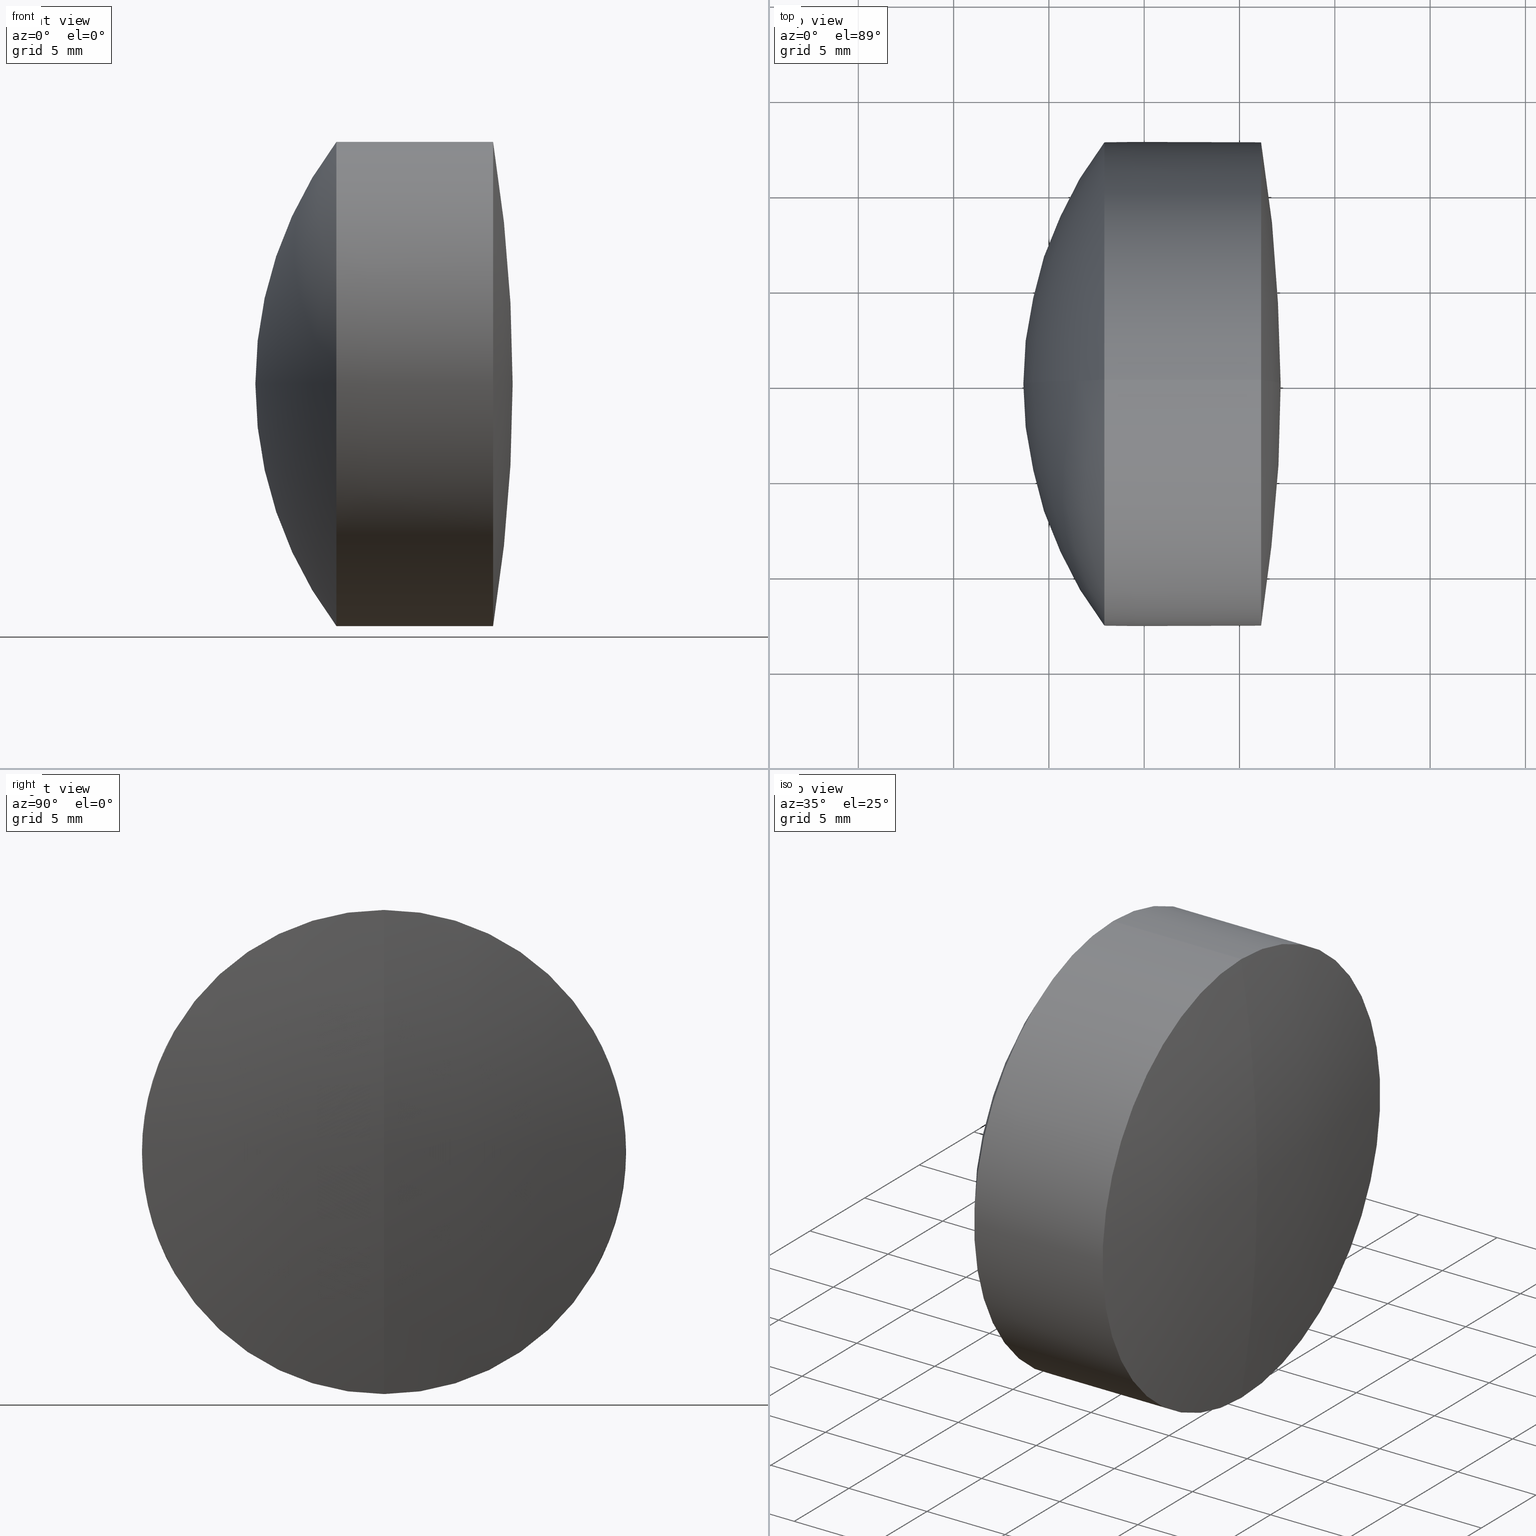
[diagram: canonical four-view strip — front | top / right | iso, engineering-drawing reading convention]
A machine part, canonical four-view strip (front | top / right | iso — engineering-drawing reading convention). The complete STEP part file that produces these views, byte-faithful:
ISO-10303-21;
HEADER;
FILE_DESCRIPTION (( 'STEP AP214' ),
    '1' );
FILE_NAME ('145114.STEP',
    '2019-05-31T01:51:42',
    ( 'user' ),
    ( '΢���й�' ),
    'SwSTEP 2.0',
    'SolidWorks 2016',
    '' );
FILE_SCHEMA (( 'AUTOMOTIVE_DESIGN' ));
ENDSEC;

DATA;
#1 = AXIS2_PLACEMENT_3D ( 'NONE', #118, #89, #330 ) ;
#2 = UNCERTAINTY_MEASURE_WITH_UNIT (LENGTH_MEASURE( 1.000000000000000100E-005 ), #229, 'distance_accuracy_value', 'NONE');
#3 = EDGE_CURVE ( 'NONE', #111, #268, #69, .T. ) ;
#4 = CIRCLE ( 'NONE', #109, 79.07999999999998400 ) ;
#5 = ORIENTED_EDGE ( 'NONE', *, *, #327, .F. ) ;
#6 = PRESENTATION_STYLE_ASSIGNMENT (( #246 ) ) ;
#7 = EDGE_CURVE ( 'NONE', #31, #111, #198, .T. ) ;
#8 = ORIENTED_EDGE ( 'NONE', *, *, #197, .F. ) ;
#9 = FACE_OUTER_BOUND ( 'NONE', #17, .T. ) ;
#10 = DIRECTION ( 'NONE',  ( 0.0000000000000000000, 1.000000000000000000, 0.0000000000000000000 ) ) ;
#11 = AXIS2_PLACEMENT_3D ( 'NONE', #121, #166, #13 ) ;
#12 = DIRECTION ( 'NONE',  ( -1.000000000000000000, -0.0000000000000000000, -0.0000000000000000000 ) ) ;
#13 = DIRECTION ( 'NONE',  ( 0.0000000000000000000, -1.224646799147353200E-016, 1.000000000000000000 ) ) ;
#14 = EDGE_CURVE ( 'NONE', #267, #157, #317, .T. ) ;
#15 = PRODUCT_DEFINITION_FORMATION_WITH_SPECIFIED_SOURCE ( '�κ�', '', #214, .NOT_KNOWN. ) ;
#16 = CIRCLE ( 'NONE', #125, 12.69999999999999800 ) ;
#17 = EDGE_LOOP ( 'NONE', ( #185, #97, #112, #153 ) ) ;
#18 = CYLINDRICAL_SURFACE ( 'NONE', #113, 12.70000000000000100 ) ;
#19 = AXIS2_PLACEMENT_3D ( 'NONE', #257, #260, #313 ) ;
#20 =( NAMED_UNIT ( * ) PLANE_ANGLE_UNIT ( ) SI_UNIT ( $, .RADIAN. ) );
#21 = FACE_OUTER_BOUND ( 'NONE', #194, .T. ) ;
#22 = CARTESIAN_POINT ( 'NONE',  ( 124.5233095260452400, 1.555301434917138600E-015, -12.70000000000000100 ) ) ;
#23 = ORIENTED_EDGE ( 'NONE', *, *, #310, .T. ) ;
#24 = CIRCLE ( 'NONE', #11, 16.18000000000000000 ) ;
#25 = CARTESIAN_POINT ( 'NONE',  ( 272.9115847359946700, 0.0000000000000000000, 0.0000000000000000000 ) ) ;
#26 = PRESENTATION_LAYER_ASSIGNMENT (  '', '', ( #129 ) ) ;
#27 = VERTEX_POINT ( 'NONE', #171 ) ;
#28 = CARTESIAN_POINT ( 'NONE',  ( 274.5040750828525800, 0.0000000000000000000, 0.0000000000000000000 ) ) ;
#29 = DIRECTION ( 'NONE',  ( 0.0000000000000000000, 1.000000000000000000, 0.0000000000000000000 ) ) ;
#30 = CARTESIAN_POINT ( 'NONE',  ( 281.1325348403413500, 1.555301434917137400E-015, -12.69999999999998500 ) ) ;
#31 = VERTEX_POINT ( 'NONE', #30 ) ;
#32 = VECTOR ( 'NONE', #145, 1000.000000000000000 ) ;
#33 = ADVANCED_FACE ( 'NONE', ( #284 ), #50, .T. ) ;
#34 = PRODUCT_RELATED_PRODUCT_CATEGORY ( 'part', '', ( #214 ) ) ;
#35 = MECHANICAL_DESIGN_GEOMETRIC_PRESENTATION_REPRESENTATION (  '', ( #129 ), #57 ) ;
#36 = DIRECTION ( 'NONE',  ( 0.0000000000000000000, 0.0000000000000000000, 1.000000000000000000 ) ) ;
#37 = EDGE_LOOP ( 'NONE', ( #62, #258, #213 ) ) ;
#38 = DIRECTION ( 'NONE',  ( 1.000000000000000000, 0.0000000000000000000, 0.0000000000000000000 ) ) ;
#39 = AXIS2_PLACEMENT_3D ( 'NONE', #28, #305, #148 ) ;
#40 = CARTESIAN_POINT ( 'NONE',  ( 272.9115847359946700, 0.0000000000000000000, 0.0000000000000000000 ) ) ;
#41 = SURFACE_SIDE_STYLE ('',( #115 ) ) ;
#42 = EDGE_LOOP ( 'NONE', ( #79, #74, #84 ) ) ;
#43 = CIRCLE ( 'NONE', #271, 12.69999999999998500 ) ;
#44 = EDGE_CURVE ( 'NONE', #157, #139, #82, .T. ) ;
#45 = CARTESIAN_POINT ( 'NONE',  ( -0.5519199926577972300, 0.0000000000000000000, 0.0000000000000000000 ) ) ;
#46 = DIRECTION ( 'NONE',  ( 0.0000000000000000000, 0.0000000000000000000, 1.000000000000000000 ) ) ;
#47 = CARTESIAN_POINT ( 'NONE',  ( 280.6589865545651000, 0.0000000000000000000, 7.929633164417436900E-015 ) ) ;
#48 = CARTESIAN_POINT ( 'NONE',  ( -0.5519199926577972300, 1.555301434917137800E-015, -12.69999999999999200 ) ) ;
#49 = APPLICATION_PROTOCOL_DEFINITION ( 'draft international standard', 'automotive_design', 1998, #256 ) ;
#50 = SPHERICAL_SURFACE ( 'NONE', #263, 21.08999999999999600 ) ;
#51 = CARTESIAN_POINT ( 'NONE',  ( 289.7489865545650800, 0.0000000000000000000, 6.938893904096653600E-015 ) ) ;
#52 = DIRECTION ( 'NONE',  ( 0.0000000000000000000, 0.0000000000000000000, 1.000000000000000000 ) ) ;
#53 = AXIS2_PLACEMENT_3D ( 'NONE', #243, #151, #341 ) ;
#54 = ADVANCED_FACE ( 'NONE', ( #75 ), #216, .F. ) ;
#55 = ORIENTED_EDGE ( 'NONE', *, *, #70, .F. ) ;
#56 = LINE ( 'NONE', #22, #253 ) ;
#57 =( GEOMETRIC_REPRESENTATION_CONTEXT ( 3 ) GLOBAL_UNCERTAINTY_ASSIGNED_CONTEXT ( ( #273 ) ) GLOBAL_UNIT_ASSIGNED_CONTEXT ( ( #230, #204, #249 ) ) REPRESENTATION_CONTEXT ( 'NONE', 'WORKASPACE' ) );
#58 = EDGE_CURVE ( 'NONE', #189, #318, #56, .T. ) ;
#59 = CARTESIAN_POINT ( 'NONE',  ( 264.4789865545651500, 0.0000000000000000000, 6.938893903907228400E-015 ) ) ;
#60 =( NAMED_UNIT ( * ) PLANE_ANGLE_UNIT ( ) SI_UNIT ( $, .RADIAN. ) );
#61 = CIRCLE ( 'NONE', #307, 16.18000000000000000 ) ;
#62 = ORIENTED_EDGE ( 'NONE', *, *, #147, .F. ) ;
#63 = ORIENTED_EDGE ( 'NONE', *, *, #188, .F. ) ;
#64 = PRESENTATION_STYLE_ASSIGNMENT (( #71 ) ) ;
#65 = CARTESIAN_POINT ( 'NONE',  ( 280.6589865545651000, 0.0000000000000000000, 7.929633164417436900E-015 ) ) ;
#66 = DIRECTION ( 'NONE',  ( 0.0000000000000000000, 0.0000000000000000000, 1.000000000000000000 ) ) ;
#67 = APPLICATION_CONTEXT ( 'automotive_design' ) ;
#68 = ORIENTED_EDGE ( 'NONE', *, *, #191, .F. ) ;
#69 = CIRCLE ( 'NONE', #218, 12.69999999999999800 ) ;
#70 = EDGE_CURVE ( 'NONE', #157, #189, #85, .T. ) ;
#71 = SURFACE_STYLE_USAGE ( .BOTH. , #123 ) ;
#72 = CARTESIAN_POINT ( 'NONE',  ( 274.5040750828525800, 0.0000000000000000000, 12.69999999999999600 ) ) ;
#73 = ORIENTED_EDGE ( 'NONE', *, *, #163, .F. ) ;
#74 = ORIENTED_EDGE ( 'NONE', *, *, #14, .T. ) ;
#75 = FACE_OUTER_BOUND ( 'NONE', #334, .T. ) ;
#76 = AXIS2_PLACEMENT_3D ( 'NONE', #138, #241, #297 ) ;
#77 = DIRECTION ( 'NONE',  ( 0.0000000000000000000, 0.0000000000000000000, 1.000000000000000000 ) ) ;
#78 = SPHERICAL_SURFACE ( 'NONE', #176, 79.07999999999998400 ) ;
#79 = ORIENTED_EDGE ( 'NONE', *, *, #169, .F. ) ;
#80 = COLOUR_RGB ( '',1.000000000000000000, 1.000000000000000000, 1.000000000000000000 ) ;
#81 = ADVANCED_FACE ( 'NONE', ( #296 ), #18, .T. ) ;
#82 = LINE ( 'NONE', #179, #322 ) ;
#83 = ORIENTED_EDGE ( 'NONE', *, *, #169, .T. ) ;
#84 = ORIENTED_EDGE ( 'NONE', *, *, #294, .F. ) ;
#85 = CIRCLE ( 'NONE', #39, 12.69999999999999600 ) ;
#86 = ORIENTED_EDGE ( 'NONE', *, *, #187, .F. ) ;
#87 = DIRECTION ( 'NONE',  ( 0.0000000000000000000, 0.0000000000000000000, 1.000000000000000000 ) ) ;
#88 = AXIS2_PLACEMENT_3D ( 'NONE', #127, #233, #196 ) ;
#89 = DIRECTION ( 'NONE',  ( -1.000000000000000000, -0.0000000000000000000, -0.0000000000000000000 ) ) ;
#90 = ORIENTED_EDGE ( 'NONE', *, *, #44, .T. ) ;
#91 = CARTESIAN_POINT ( 'NONE',  ( 289.7489865545650800, 0.0000000000000000000, 6.938893904096653600E-015 ) ) ;
#92 =( NAMED_UNIT ( * ) PLANE_ANGLE_UNIT ( ) SI_UNIT ( $, .RADIAN. ) );
#93 = CARTESIAN_POINT ( 'NONE',  ( 264.4789865545651500, 0.0000000000000000000, 6.938893903907228400E-015 ) ) ;
#94 = CARTESIAN_POINT ( 'NONE',  ( 274.5040750828525800, 0.0000000000000000000, 12.69999999999999800 ) ) ;
#95 = DIRECTION ( 'NONE',  ( 0.0000000000000000000, -1.000000000000000000, -1.224646799147353200E-016 ) ) ;
#96 = DIRECTION ( 'NONE',  ( 0.0000000000000000000, 0.0000000000000000000, 1.000000000000000000 ) ) ;
#97 = ORIENTED_EDGE ( 'NONE', *, *, #197, .T. ) ;
#98 =( GEOMETRIC_REPRESENTATION_CONTEXT ( 3 ) GLOBAL_UNCERTAINTY_ASSIGNED_CONTEXT ( ( #2 ) ) GLOBAL_UNIT_ASSIGNED_CONTEXT ( ( #229, #20, #195 ) ) REPRESENTATION_CONTEXT ( 'NONE', 'WORKASPACE' ) );
#99 = DIRECTION ( 'NONE',  ( 0.0000000000000000000, 0.0000000000000000000, -1.000000000000000000 ) ) ;
#100 = DIRECTION ( 'NONE',  ( -1.000000000000000000, -0.0000000000000000000, -0.0000000000000000000 ) ) ;
#101 = DIRECTION ( 'NONE',  ( 0.0000000000000000000, 0.0000000000000000000, 1.000000000000000000 ) ) ;
#102 = DIRECTION ( 'NONE',  ( -1.000000000000000000, -0.0000000000000000000, -0.0000000000000000000 ) ) ;
#103 = DIRECTION ( 'NONE',  ( 0.0000000000000000000, 0.0000000000000000000, -1.000000000000000000 ) ) ;
#104 = AXIS2_PLACEMENT_3D ( 'NONE', #234, #287, #77 ) ;
#105 = DIRECTION ( 'NONE',  ( -1.000000000000000000, -0.0000000000000000000, -0.0000000000000000000 ) ) ;
#106 = CIRCLE ( 'NONE', #238, 21.08999999999999600 ) ;
#107 = ADVANCED_FACE ( 'NONE', ( #135 ), #131, .T. ) ;
#108 = EDGE_CURVE ( 'NONE', #27, #31, #110, .T. ) ;
#109 = AXIS2_PLACEMENT_3D ( 'NONE', #164, #219, #323 ) ;
#110 = CIRCLE ( 'NONE', #184, 12.69999999999998500 ) ;
#111 = VERTEX_POINT ( 'NONE', #304 ) ;
#112 = ORIENTED_EDGE ( 'NONE', *, *, #187, .T. ) ;
#113 = AXIS2_PLACEMENT_3D ( 'NONE', #167, #178, #52 ) ;
#114 = CARTESIAN_POINT ( 'NONE',  ( 282.1589865545651000, 0.0000000000000000000, 4.842253443828633400E-015 ) ) ;
#115 = SURFACE_STYLE_FILL_AREA ( #227 ) ;
#116 = DIRECTION ( 'NONE',  ( 0.0000000000000000000, 0.0000000000000000000, 1.000000000000000000 ) ) ;
#117 = ADVANCED_BREP_SHAPE_REPRESENTATION ( '145114', ( #221, #282, #320 ), #160 ) ;
#118 = CARTESIAN_POINT ( 'NONE',  ( -0.5519199926577972300, 0.0000000000000000000, 0.0000000000000000000 ) ) ;
#119 = COLOUR_RGB ( '',1.000000000000000000, 1.000000000000000000, 1.000000000000000000 ) ;
#120 = AXIS2_PLACEMENT_3D ( 'NONE', #25, #100, #116 ) ;
#121 = CARTESIAN_POINT ( 'NONE',  ( 264.4789865545651500, 0.0000000000000000000, 6.938893903907228400E-015 ) ) ;
#122 = FACE_OUTER_BOUND ( 'NONE', #42, .T. ) ;
#123 = SURFACE_SIDE_STYLE ('',( #134 ) ) ;
#124 = ORIENTED_EDGE ( 'NONE', *, *, #294, .T. ) ;
#125 = AXIS2_PLACEMENT_3D ( 'NONE', #190, #12, #36 ) ;
#126 = CARTESIAN_POINT ( 'NONE',  ( -0.5519199926577972300, 0.0000000000000000000, 12.69999999999999200 ) ) ;
#127 = CARTESIAN_POINT ( 'NONE',  ( 264.4789865545651500, 0.0000000000000000000, 6.938893903907228400E-015 ) ) ;
#128 = DIRECTION ( 'NONE',  ( 0.0000000000000000000, -1.224646799147353200E-016, 1.000000000000000000 ) ) ;
#129 = STYLED_ITEM ( 'NONE', ( #64 ), #282 ) ;
#130 = ADVANCED_FACE ( 'NONE', ( #9 ), #278, .T. ) ;
#131 = SPHERICAL_SURFACE ( 'NONE', #150, 79.07999999999998400 ) ;
#132 = EDGE_LOOP ( 'NONE', ( #231, #301, #5, #86 ) ) ;
#133 = ORIENTED_EDGE ( 'NONE', *, *, #44, .F. ) ;
#134 = SURFACE_STYLE_FILL_AREA ( #309 ) ;
#135 = FACE_OUTER_BOUND ( 'NONE', #224, .T. ) ;
#136 = EDGE_LOOP ( 'NONE', ( #201, #259, #347, #133 ) ) ;
#137 = PRESENTATION_LAYER_ASSIGNMENT (  '', '', ( #222 ) ) ;
#138 = CARTESIAN_POINT ( 'NONE',  ( 274.5040750828525800, 0.0000000000000000000, 0.0000000000000000000 ) ) ;
#139 = VERTEX_POINT ( 'NONE', #250 ) ;
#140 = AXIS2_PLACEMENT_3D ( 'NONE', #59, #10, #87 ) ;
#141 = SURFACE_STYLE_FILL_AREA ( #143 ) ;
#142 = CIRCLE ( 'NONE', #76, 12.69999999999999600 ) ;
#143 = FILL_AREA_STYLE ('',( #298 ) ) ;
#144 = CLOSED_SHELL ( 'NONE', ( #344, #261, #319, #54, #130, #107 ) ) ;
#145 = DIRECTION ( 'NONE',  ( -1.000000000000000000, -0.0000000000000000000, -0.0000000000000000000 ) ) ;
#146 = CARTESIAN_POINT ( 'NONE',  ( 268.6589865545651000, 0.0000000000000000000, 5.647503854395770100E-015 ) ) ;
#147 = EDGE_CURVE ( 'NONE', #228, #268, #61, .T. ) ;
#148 = DIRECTION ( 'NONE',  ( 0.0000000000000000000, 0.0000000000000000000, 1.000000000000000000 ) ) ;
#149 = EDGE_LOOP ( 'NONE', ( #68, #291, #280 ) ) ;
#150 = AXIS2_PLACEMENT_3D ( 'NONE', #308, #281, #302 ) ;
#151 = DIRECTION ( 'NONE',  ( -0.0000000000000000000, 1.000000000000000000, 1.224646799147353200E-016 ) ) ;
#152 = SHAPE_DEFINITION_REPRESENTATION ( #183, #117 ) ;
#153 = ORIENTED_EDGE ( 'NONE', *, *, #3, .F. ) ;
#154 = DIRECTION ( 'NONE',  ( -1.000000000000000000, -0.0000000000000000000, -0.0000000000000000000 ) ) ;
#155 = CARTESIAN_POINT ( 'NONE',  ( 264.4789865545651500, 0.0000000000000000000, 6.938893903907228400E-015 ) ) ;
#156 = MECHANICAL_DESIGN_GEOMETRIC_PRESENTATION_REPRESENTATION (  '', ( #222 ), #98 ) ;
#157 = VERTEX_POINT ( 'NONE', #72 ) ;
#158 = LINE ( 'NONE', #126, #32 ) ;
#159 = ADVANCED_FACE ( 'NONE', ( #122 ), #303, .T. ) ;
#160 =( GEOMETRIC_REPRESENTATION_CONTEXT ( 3 ) GLOBAL_UNCERTAINTY_ASSIGNED_CONTEXT ( ( #339 ) ) GLOBAL_UNIT_ASSIGNED_CONTEXT ( ( #220, #60, #328 ) ) REPRESENTATION_CONTEXT ( 'NONE', 'WORKASPACE' ) );
#161 = SPHERICAL_SURFACE ( 'NONE', #88, 16.18000000000000000 ) ;
#162 = CLOSED_SHELL ( 'NONE', ( #290, #207, #182, #33, #81, #159 ) ) ;
#163 = EDGE_CURVE ( 'NONE', #318, #139, #335, .T. ) ;
#164 = CARTESIAN_POINT ( 'NONE',  ( 203.0789865545651200, 0.0000000000000000000, 0.0000000000000000000 ) ) ;
#165 = FILL_AREA_STYLE_COLOUR ( '', #311 ) ;
#166 = DIRECTION ( 'NONE',  ( -0.0000000000000000000, 1.000000000000000000, 1.224646799147353200E-016 ) ) ;
#167 = CARTESIAN_POINT ( 'NONE',  ( 124.5233095260452400, 0.0000000000000000000, 0.0000000000000000000 ) ) ;
#168 =( NAMED_UNIT ( * ) SI_UNIT ( $, .STERADIAN. ) SOLID_ANGLE_UNIT ( ) );
#169 = EDGE_CURVE ( 'NONE', #267, #189, #333, .T. ) ;
#170 = DIRECTION ( 'NONE',  ( -0.0000000000000000000, 1.000000000000000000, 1.224646799147353200E-016 ) ) ;
#171 = CARTESIAN_POINT ( 'NONE',  ( 281.1325348403413500, 0.0000000000000000000, 12.69999999999998500 ) ) ;
#172 = DIRECTION ( 'NONE',  ( 0.0000000000000000000, 0.0000000000000000000, 1.000000000000000000 ) ) ;
#173 = CARTESIAN_POINT ( 'NONE',  ( 264.4789865545651500, 0.0000000000000000000, 6.938893903907228400E-015 ) ) ;
#174 = PRODUCT_CONTEXT ( 'NONE', #67, 'mechanical' ) ;
#175 = CIRCLE ( 'NONE', #293, 21.08999999999999600 ) ;
#176 = AXIS2_PLACEMENT_3D ( 'NONE', #272, #242, #324 ) ;
#177 = UNCERTAINTY_MEASURE_WITH_UNIT (LENGTH_MEASURE( 1.000000000000000100E-005 ), #331, 'distance_accuracy_value', 'NONE');
#178 = DIRECTION ( 'NONE',  ( -1.000000000000000000, -0.0000000000000000000, -0.0000000000000000000 ) ) ;
#179 = CARTESIAN_POINT ( 'NONE',  ( 124.5233095260452400, 0.0000000000000000000, 12.70000000000000100 ) ) ;
#180 = FILL_AREA_STYLE_COLOUR ( '', #119 ) ;
#181 = DIRECTION ( 'NONE',  ( -1.000000000000000000, -0.0000000000000000000, -0.0000000000000000000 ) ) ;
#182 = ADVANCED_FACE ( 'NONE', ( #21 ), #289, .T. ) ;
#183 = PRODUCT_DEFINITION_SHAPE ( 'NONE', 'NONE',  #340 ) ;
#184 = AXIS2_PLACEMENT_3D ( 'NONE', #245, #154, #96 ) ;
#185 = ORIENTED_EDGE ( 'NONE', *, *, #7, .F. ) ;
#186 = PRESENTATION_STYLE_ASSIGNMENT (( #192 ) ) ;
#187 = EDGE_CURVE ( 'NONE', #27, #268, #158, .T. ) ;
#188 = EDGE_CURVE ( 'NONE', #318, #252, #175, .T. ) ;
#189 = VERTEX_POINT ( 'NONE', #336 ) ;
#190 = CARTESIAN_POINT ( 'NONE',  ( 274.5040750828525800, 0.0000000000000000000, 0.0000000000000000000 ) ) ;
#191 = EDGE_CURVE ( 'NONE', #139, #252, #106, .T. ) ;
#192 = SURFACE_STYLE_USAGE ( .BOTH. , #41 ) ;
#193 = SURFACE_SIDE_STYLE ('',( #141 ) ) ;
#194 = EDGE_LOOP ( 'NONE', ( #342, #247, #63 ) ) ;
#195 =( NAMED_UNIT ( * ) SI_UNIT ( $, .STERADIAN. ) SOLID_ANGLE_UNIT ( ) );
#196 = DIRECTION ( 'NONE',  ( 0.0000000000000000000, 0.0000000000000000000, 1.000000000000000000 ) ) ;
#197 = EDGE_CURVE ( 'NONE', #31, #27, #43, .T. ) ;
#198 = LINE ( 'NONE', #48, #292 ) ;
#199 = DIRECTION ( 'NONE',  ( 0.0000000000000000000, 0.0000000000000000000, -1.000000000000000000 ) ) ;
#200 = ORIENTED_EDGE ( 'NONE', *, *, #108, .F. ) ;
#201 = ORIENTED_EDGE ( 'NONE', *, *, #70, .T. ) ;
#202 = AXIS2_PLACEMENT_3D ( 'NONE', #315, #170, #128 ) ;
#203 = ORIENTED_EDGE ( 'NONE', *, *, #58, .F. ) ;
#204 =( NAMED_UNIT ( * ) PLANE_ANGLE_UNIT ( ) SI_UNIT ( $, .RADIAN. ) );
#205 = CARTESIAN_POINT ( 'NONE',  ( 281.1325348403413500, 0.0000000000000000000, 0.0000000000000000000 ) ) ;
#206 = EDGE_CURVE ( 'NONE', #228, #111, #24, .T. ) ;
#207 = ADVANCED_FACE ( 'NONE', ( #266 ), #239, .T. ) ;
#208 = CIRCLE ( 'NONE', #120, 12.70000000000000600 ) ;
#209 = ORIENTED_EDGE ( 'NONE', *, *, #14, .F. ) ;
#210 = EDGE_CURVE ( 'NONE', #139, #318, #208, .T. ) ;
#211 = STYLED_ITEM ( 'NONE', ( #186 ), #117 ) ;
#212 = SPHERICAL_SURFACE ( 'NONE', #140, 16.18000000000000000 ) ;
#213 = ORIENTED_EDGE ( 'NONE', *, *, #3, .T. ) ;
#214 = PRODUCT ( '145114', '145114', '', ( #174 ) ) ;
#215 = CARTESIAN_POINT ( 'NONE',  ( 272.9115847359946700, 0.0000000000000000000, -12.69999999999999900 ) ) ;
#216 = SPHERICAL_SURFACE ( 'NONE', #306, 16.18000000000000000 ) ;
#217 = ORIENTED_EDGE ( 'NONE', *, *, #265, .F. ) ;
#218 = AXIS2_PLACEMENT_3D ( 'NONE', #332, #248, #172 ) ;
#219 = DIRECTION ( 'NONE',  ( 0.0000000000000000000, -1.000000000000000000, 0.0000000000000000000 ) ) ;
#220 =( LENGTH_UNIT ( ) NAMED_UNIT ( * ) SI_UNIT ( .MILLI., .METRE. ) );
#221 = MANIFOLD_SOLID_BREP ( '��ת1', #162 ) ;
#222 = STYLED_ITEM ( 'NONE', ( #6 ), #221 ) ;
#223 = DIRECTION ( 'NONE',  ( 0.0000000000000000000, 0.0000000000000000000, 1.000000000000000000 ) ) ;
#224 = EDGE_LOOP ( 'NONE', ( #217, #23, #8 ) ) ;
#225 = PRODUCT_DEFINITION_CONTEXT ( 'detailed design', #256, 'design' ) ;
#226 = DIRECTION ( 'NONE',  ( -1.000000000000000000, -0.0000000000000000000, -0.0000000000000000000 ) ) ;
#227 = FILL_AREA_STYLE ('',( #165 ) ) ;
#228 = VERTEX_POINT ( 'NONE', #65 ) ;
#229 =( LENGTH_UNIT ( ) NAMED_UNIT ( * ) SI_UNIT ( .MILLI., .METRE. ) );
#230 =( LENGTH_UNIT ( ) NAMED_UNIT ( * ) SI_UNIT ( .MILLI., .METRE. ) );
#231 = ORIENTED_EDGE ( 'NONE', *, *, #108, .T. ) ;
#232 = DIRECTION ( 'NONE',  ( -0.0000000000000000000, -1.000000000000000000, -0.0000000000000000000 ) ) ;
#233 = DIRECTION ( 'NONE',  ( 0.0000000000000000000, 1.000000000000000000, 0.0000000000000000000 ) ) ;
#234 = CARTESIAN_POINT ( 'NONE',  ( 264.4789865545651500, 0.0000000000000000000, 6.938893903907228400E-015 ) ) ;
#235 = PRESENTATION_LAYER_ASSIGNMENT (  '', '', ( #211 ) ) ;
#236 = DIRECTION ( 'NONE',  ( -1.000000000000000000, -0.0000000000000000000, -0.0000000000000000000 ) ) ;
#237 = AXIS2_PLACEMENT_3D ( 'NONE', #40, #226, #66 ) ;
#238 = AXIS2_PLACEMENT_3D ( 'NONE', #91, #95, #279 ) ;
#239 = CYLINDRICAL_SURFACE ( 'NONE', #19, 12.70000000000000100 ) ;
#240 = ORIENTED_EDGE ( 'NONE', *, *, #310, .F. ) ;
#241 = DIRECTION ( 'NONE',  ( -1.000000000000000000, -0.0000000000000000000, -0.0000000000000000000 ) ) ;
#242 = DIRECTION ( 'NONE',  ( 0.0000000000000000000, 1.000000000000000000, 0.0000000000000000000 ) ) ;
#243 = CARTESIAN_POINT ( 'NONE',  ( 264.4789865545651500, 0.0000000000000000000, 6.938893903907228400E-015 ) ) ;
#244 = MECHANICAL_DESIGN_GEOMETRIC_PRESENTATION_REPRESENTATION (  '', ( #211 ), #264 ) ;
#245 = CARTESIAN_POINT ( 'NONE',  ( 281.1325348403413500, 0.0000000000000000000, 0.0000000000000000000 ) ) ;
#246 = SURFACE_STYLE_USAGE ( .BOTH. , #193 ) ;
#247 = ORIENTED_EDGE ( 'NONE', *, *, #191, .T. ) ;
#248 = DIRECTION ( 'NONE',  ( -1.000000000000000000, -0.0000000000000000000, -0.0000000000000000000 ) ) ;
#249 =( NAMED_UNIT ( * ) SI_UNIT ( $, .STERADIAN. ) SOLID_ANGLE_UNIT ( ) );
#250 = CARTESIAN_POINT ( 'NONE',  ( 272.9115847359946700, -1.555301434917138400E-015, 12.70000000000000600 ) ) ;
#251 = AXIS2_PLACEMENT_3D ( 'NONE', #254, #274, #103 ) ;
#252 = VERTEX_POINT ( 'NONE', #146 ) ;
#253 = VECTOR ( 'NONE', #181, 1000.000000000000000 ) ;
#254 = CARTESIAN_POINT ( 'NONE',  ( 289.7489865545650800, 0.0000000000000000000, 6.938893904096653600E-015 ) ) ;
#255 = DIRECTION ( 'NONE',  ( 0.0000000000000000000, -1.000000000000000000, 0.0000000000000000000 ) ) ;
#256 = APPLICATION_CONTEXT ( 'automotive_design' ) ;
#257 = CARTESIAN_POINT ( 'NONE',  ( 124.5233095260452400, 0.0000000000000000000, 0.0000000000000000000 ) ) ;
#258 = ORIENTED_EDGE ( 'NONE', *, *, #206, .T. ) ;
#259 = ORIENTED_EDGE ( 'NONE', *, *, #58, .T. ) ;
#260 = DIRECTION ( 'NONE',  ( -1.000000000000000000, -0.0000000000000000000, -0.0000000000000000000 ) ) ;
#261 = ADVANCED_FACE ( 'NONE', ( #295 ), #346, .T. ) ;
#262 = EDGE_LOOP ( 'NONE', ( #209, #83, #55 ) ) ;
#263 = AXIS2_PLACEMENT_3D ( 'NONE', #343, #232, #199 ) ;
#264 =( GEOMETRIC_REPRESENTATION_CONTEXT ( 3 ) GLOBAL_UNCERTAINTY_ASSIGNED_CONTEXT ( ( #177 ) ) GLOBAL_UNIT_ASSIGNED_CONTEXT ( ( #331, #92, #168 ) ) REPRESENTATION_CONTEXT ( 'NONE', 'WORKASPACE' ) );
#265 = EDGE_CURVE ( 'NONE', #325, #31, #329, .T. ) ;
#266 = FACE_OUTER_BOUND ( 'NONE', #136, .T. ) ;
#267 = VERTEX_POINT ( 'NONE', #47 ) ;
#268 = VERTEX_POINT ( 'NONE', #94 ) ;
#269 = ORIENTED_EDGE ( 'NONE', *, *, #206, .F. ) ;
#270 = FACE_OUTER_BOUND ( 'NONE', #321, .T. ) ;
#271 = AXIS2_PLACEMENT_3D ( 'NONE', #205, #276, #101 ) ;
#272 = CARTESIAN_POINT ( 'NONE',  ( 203.0789865545651200, 0.0000000000000000000, 0.0000000000000000000 ) ) ;
#273 = UNCERTAINTY_MEASURE_WITH_UNIT (LENGTH_MEASURE( 1.000000000000000100E-005 ), #230, 'distance_accuracy_value', 'NONE');
#274 = DIRECTION ( 'NONE',  ( -0.0000000000000000000, -1.000000000000000000, -0.0000000000000000000 ) ) ;
#275 = EDGE_LOOP ( 'NONE', ( #203, #124, #90, #73 ) ) ;
#276 = DIRECTION ( 'NONE',  ( -1.000000000000000000, -0.0000000000000000000, -0.0000000000000000000 ) ) ;
#277 = DIRECTION ( 'NONE',  ( 0.0000000000000000000, 0.0000000000000000000, 1.000000000000000000 ) ) ;
#278 = CYLINDRICAL_SURFACE ( 'NONE', #312, 12.69999999999999200 ) ;
#279 = DIRECTION ( 'NONE',  ( 0.0000000000000000000, 1.224646799147353500E-016, -1.000000000000000000 ) ) ;
#280 = ORIENTED_EDGE ( 'NONE', *, *, #188, .T. ) ;
#281 = DIRECTION ( 'NONE',  ( 0.0000000000000000000, 1.000000000000000000, 0.0000000000000000000 ) ) ;
#282 = MANIFOLD_SOLID_BREP ( '��ת3', #144 ) ;
#283 = FACE_OUTER_BOUND ( 'NONE', #262, .T. ) ;
#284 = FACE_OUTER_BOUND ( 'NONE', #149, .T. ) ;
#285 = FACE_OUTER_BOUND ( 'NONE', #37, .T. ) ;
#286 = ORIENTED_EDGE ( 'NONE', *, *, #327, .T. ) ;
#287 = DIRECTION ( 'NONE',  ( 0.0000000000000000000, 1.000000000000000000, 0.0000000000000000000 ) ) ;
#288 = DIRECTION ( 'NONE',  ( 0.0000000000000000000, 0.0000000000000000000, 1.000000000000000000 ) ) ;
#289 = SPHERICAL_SURFACE ( 'NONE', #251, 21.08999999999999600 ) ;
#290 = ADVANCED_FACE ( 'NONE', ( #283 ), #161, .T. ) ;
#291 = ORIENTED_EDGE ( 'NONE', *, *, #210, .T. ) ;
#292 = VECTOR ( 'NONE', #105, 1000.000000000000000 ) ;
#293 = AXIS2_PLACEMENT_3D ( 'NONE', #51, #299, #288 ) ;
#294 = EDGE_CURVE ( 'NONE', #189, #157, #142, .T. ) ;
#295 = FACE_OUTER_BOUND ( 'NONE', #132, .T. ) ;
#296 = FACE_OUTER_BOUND ( 'NONE', #275, .T. ) ;
#297 = DIRECTION ( 'NONE',  ( 0.0000000000000000000, 0.0000000000000000000, 1.000000000000000000 ) ) ;
#298 = FILL_AREA_STYLE_COLOUR ( '', #80 ) ;
#299 = DIRECTION ( 'NONE',  ( 0.0000000000000000000, 1.000000000000000000, -0.0000000000000000000 ) ) ;
#300 = APPLICATION_PROTOCOL_DEFINITION ( 'draft international standard', 'automotive_design', 1998, #67 ) ;
#301 = ORIENTED_EDGE ( 'NONE', *, *, #7, .T. ) ;
#302 = DIRECTION ( 'NONE',  ( 0.0000000000000000000, 0.0000000000000000000, 1.000000000000000000 ) ) ;
#303 = SPHERICAL_SURFACE ( 'NONE', #104, 16.18000000000000000 ) ;
#304 = CARTESIAN_POINT ( 'NONE',  ( 274.5040750828525800, 1.555301434917138200E-015, -12.69999999999999000 ) ) ;
#305 = DIRECTION ( 'NONE',  ( -1.000000000000000000, -0.0000000000000000000, -0.0000000000000000000 ) ) ;
#306 = AXIS2_PLACEMENT_3D ( 'NONE', #173, #29, #46 ) ;
#307 = AXIS2_PLACEMENT_3D ( 'NONE', #93, #255, #314 ) ;
#308 = CARTESIAN_POINT ( 'NONE',  ( 203.0789865545651200, 0.0000000000000000000, 0.0000000000000000000 ) ) ;
#309 = FILL_AREA_STYLE ('',( #180 ) ) ;
#310 = EDGE_CURVE ( 'NONE', #325, #27, #4, .T. ) ;
#311 = COLOUR_RGB ( '',1.000000000000000000, 1.000000000000000000, 1.000000000000000000 ) ;
#312 = AXIS2_PLACEMENT_3D ( 'NONE', #45, #236, #277 ) ;
#313 = DIRECTION ( 'NONE',  ( 0.0000000000000000000, 0.0000000000000000000, 1.000000000000000000 ) ) ;
#314 = DIRECTION ( 'NONE',  ( 0.0000000000000000000, 0.0000000000000000000, -1.000000000000000000 ) ) ;
#315 = CARTESIAN_POINT ( 'NONE',  ( 203.0789865545651200, 0.0000000000000000000, 0.0000000000000000000 ) ) ;
#316 = DIRECTION ( 'NONE',  ( 0.0000000000000000000, -1.000000000000000000, 0.0000000000000000000 ) ) ;
#317 = CIRCLE ( 'NONE', #338, 16.18000000000000000 ) ;
#318 = VERTEX_POINT ( 'NONE', #215 ) ;
#319 = ADVANCED_FACE ( 'NONE', ( #285 ), #212, .F. ) ;
#320 = AXIS2_PLACEMENT_3D ( 'NONE', #337, #223, #38 ) ;
#321 = EDGE_LOOP ( 'NONE', ( #240, #326, #200 ) ) ;
#322 = VECTOR ( 'NONE', #102, 1000.000000000000000 ) ;
#323 = DIRECTION ( 'NONE',  ( 0.0000000000000000000, 0.0000000000000000000, -1.000000000000000000 ) ) ;
#324 = DIRECTION ( 'NONE',  ( 0.0000000000000000000, 0.0000000000000000000, 1.000000000000000000 ) ) ;
#325 = VERTEX_POINT ( 'NONE', #114 ) ;
#326 = ORIENTED_EDGE ( 'NONE', *, *, #265, .T. ) ;
#327 = EDGE_CURVE ( 'NONE', #268, #111, #16, .T. ) ;
#328 =( NAMED_UNIT ( * ) SI_UNIT ( $, .STERADIAN. ) SOLID_ANGLE_UNIT ( ) );
#329 = CIRCLE ( 'NONE', #202, 79.07999999999998400 ) ;
#330 = DIRECTION ( 'NONE',  ( 0.0000000000000000000, 0.0000000000000000000, 1.000000000000000000 ) ) ;
#331 =( LENGTH_UNIT ( ) NAMED_UNIT ( * ) SI_UNIT ( .MILLI., .METRE. ) );
#332 = CARTESIAN_POINT ( 'NONE',  ( 274.5040750828525800, 0.0000000000000000000, 0.0000000000000000000 ) ) ;
#333 = CIRCLE ( 'NONE', #53, 16.18000000000000000 ) ;
#334 = EDGE_LOOP ( 'NONE', ( #269, #345, #286 ) ) ;
#335 = CIRCLE ( 'NONE', #237, 12.70000000000000600 ) ;
#336 = CARTESIAN_POINT ( 'NONE',  ( 274.5040750828525800, 1.555301434917138200E-015, -12.69999999999999600 ) ) ;
#337 = CARTESIAN_POINT ( 'NONE',  ( 0.0000000000000000000, 0.0000000000000000000, 0.0000000000000000000 ) ) ;
#338 = AXIS2_PLACEMENT_3D ( 'NONE', #155, #316, #99 ) ;
#339 = UNCERTAINTY_MEASURE_WITH_UNIT (LENGTH_MEASURE( 1.000000000000000100E-005 ), #220, 'distance_accuracy_value', 'NONE');
#340 = PRODUCT_DEFINITION ( 'δ֪', '', #15, #225 ) ;
#341 = DIRECTION ( 'NONE',  ( 0.0000000000000000000, -1.224646799147353200E-016, 1.000000000000000000 ) ) ;
#342 = ORIENTED_EDGE ( 'NONE', *, *, #163, .T. ) ;
#343 = CARTESIAN_POINT ( 'NONE',  ( 289.7489865545650800, 0.0000000000000000000, 6.938893904096653600E-015 ) ) ;
#344 = ADVANCED_FACE ( 'NONE', ( #270 ), #78, .T. ) ;
#345 = ORIENTED_EDGE ( 'NONE', *, *, #147, .T. ) ;
#346 = CYLINDRICAL_SURFACE ( 'NONE', #1, 12.69999999999999200 ) ;
#347 = ORIENTED_EDGE ( 'NONE', *, *, #210, .F. ) ;
ENDSEC;
END-ISO-10303-21;
